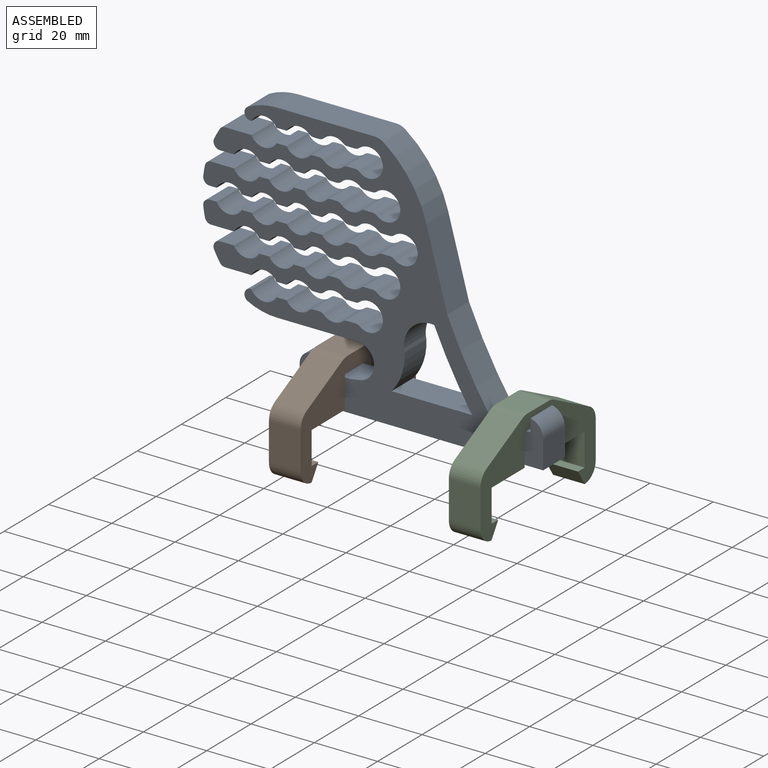
[diagram: assembled view]
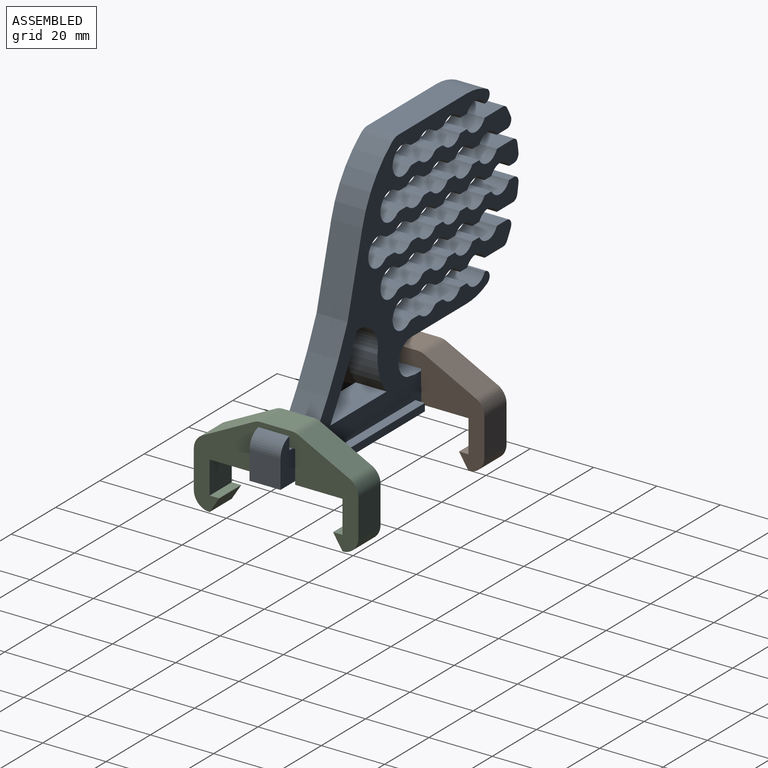
[diagram: assembled view, second angle]
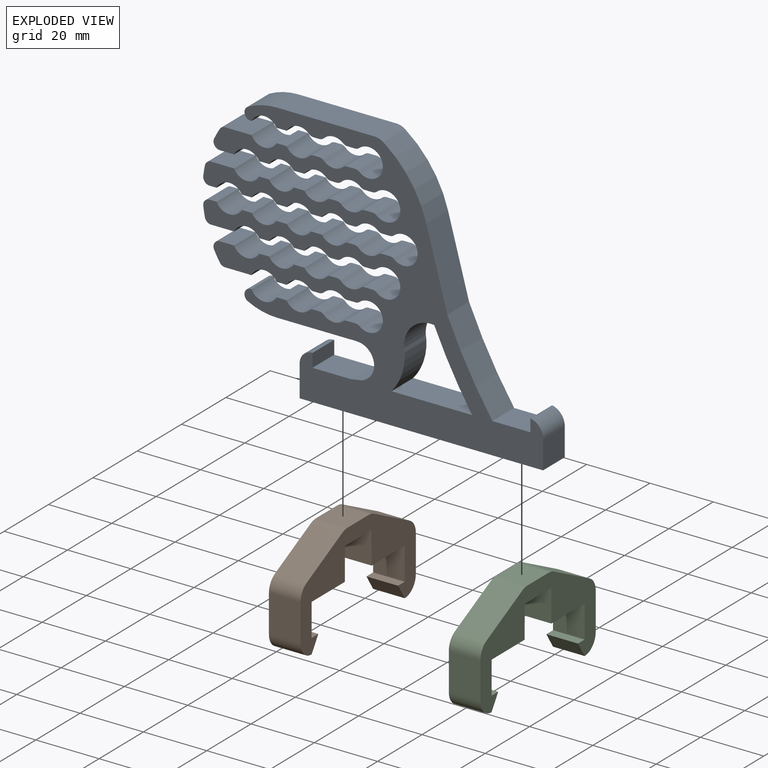
[diagram: exploded view]
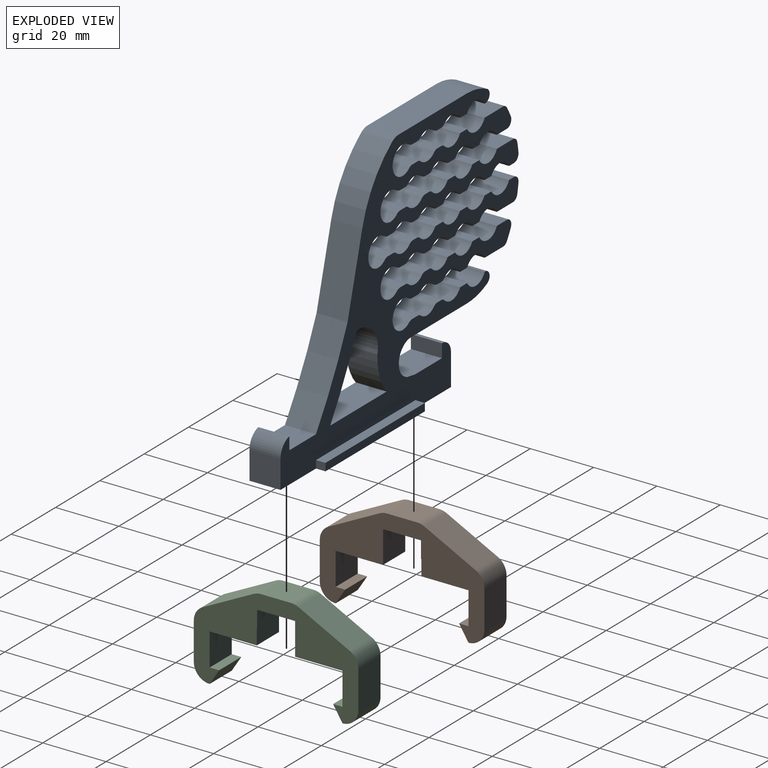
[diagram: exploded view, second angle]
ASSEMBLY  parts=3 mates=2
PART A: 177 faces, bbox 107.4x12.8x81.1 mm
  f0: plane 12x9.8mm, normal (0,0,1), area 117.6mm2, adj f79,f119,f120,f171
  f1: plane 25.46x9.8mm, normal (0,0,1), area 249.5mm2, adj f2,f118,f119,f120
  f2: cylinder r=164.66mm len=22.51mm, axis (0,1,0), area 250.1mm2, adj f1,f3,f119,f120
  f3: cylinder r=8.48mm len=10.42mm, axis (0,1,0), area 160.3mm2, adj f2,f118,f119,f120
  f4: cylinder r=4.5mm len=9.8mm, axis (0,1,0), area 201.8mm2, adj f119,f120,f131,f170
  f5: plane 9.8x2.46mm, normal (0,0,-1), area 24.1mm2, adj f119,f120,f131,f132
  f6: cylinder r=4.5mm len=9.8mm, axis (0,1,0), area 66.2mm2, adj f119,f120,f132,f133
  f7: plane 9.8x1.82mm, normal (0,0,-1), area 17.8mm2, adj f119,f120,f133,f134
  f8: cylinder r=4.5mm len=9.8mm, axis (0,1,0), area 79.1mm2, adj f9,f119,f120,f134
  f9: plane 9.8x3.39mm, normal (0,0,-1), area 33.2mm2, adj f8,f10,f119,f120
  f10: cylinder r=4.5mm len=9.8mm, axis (0,1,0), area 91.2mm2, adj f9,f11,f119,f120
  f11: plane 9.8x3.15mm, normal (0,0,-1), area 30.9mm2, adj f10,f12,f119,f120
  f12: cylinder r=4.5mm len=9.8mm, axis (0,1,0), area 95.7mm2, adj f11,f13,f119,f120
  f13: plane 9.8x7.24mm, normal (0,0,-1), area 71mm2, adj f12,f119,f120,f121
  f14: cylinder r=36mm len=9.8mm, axis (0,1,0), area 31.6mm2, adj f119,f120,f121,f122
  f15: plane 9.8x2.23mm, normal (0,0,1), area 21.9mm2, adj f16,f119,f120,f122
  f16: cylinder r=4.5mm len=9.8mm, axis (0,1,0), area 95.7mm2, adj f15,f17,f119,f120
  f17: plane 9.8x3.15mm, normal (0,0,1), area 30.9mm2, adj f16,f18,f119,f120
  f18: cylinder r=4.5mm len=9.8mm, axis (0,1,0), area 91.2mm2, adj f17,f19,f119,f120
  f19: plane 9.8x3.39mm, normal (0,0,1), area 33.2mm2, adj f18,f20,f119,f120
  f20: cylinder r=4.5mm len=9.8mm, axis (0,1,0), area 87.8mm2, adj f19,f21,f119,f120
  f21: plane 9.8x3.52mm, normal (0,0,1), area 34.5mm2, adj f20,f22,f119,f120
  f22: cylinder r=4.5mm len=9.8mm, axis (0,1,0), area 77.9mm2, adj f21,f119,f120,f135
  f23: plane 9.8x1.82mm, normal (0,0,1), area 17.8mm2, adj f119,f120,f135,f136
  f24: cylinder r=4.5mm len=9.8mm, axis (0,1,0), area 66.2mm2, adj f119,f120,f136,f137
  f25: plane 9.8x2.46mm, normal (0,0,1), area 24.1mm2, adj f119,f120,f137,f138
  f26: cylinder r=4.5mm len=9.8mm, axis (0,1,0), area 201.8mm2, adj f119,f120,f138,f139
  f27: plane 9.8x2.46mm, normal (0,0,-1), area 24.1mm2, adj f119,f120,f139,f140
  f28: cylinder r=4.5mm len=9.8mm, axis (0,1,0), area 66.2mm2, adj f119,f120,f140,f141
  f29: plane 9.8x1.82mm, normal (0,0,-1), area 17.8mm2, adj f119,f120,f141,f142
  f30: cylinder r=4.5mm len=9.8mm, axis (0,1,0), area 77.9mm2, adj f31,f119,f120,f142
  f31: plane 9.8x3.52mm, normal (0,0,-1), area 34.5mm2, adj f30,f32,f119,f120
  f32: cylinder r=4.5mm len=9.8mm, axis (0,1,0), area 87.8mm2, adj f31,f33,f119,f120
  f33: plane 9.8x3.39mm, normal (0,0,-1), area 33.2mm2, adj f32,f34,f119,f120
  f34: cylinder r=4.5mm len=9.8mm, axis (0,1,0), area 91.2mm2, adj f33,f35,f119,f120
  f35: plane 9.8x3.15mm, normal (0,0,-1), area 30.9mm2, adj f34,f36,f119,f120
  f36: cylinder r=4.5mm len=9.8mm, axis (0,1,0), area 95.7mm2, adj f35,f37,f119,f120
  f37: plane 9.8x2.23mm, normal (0,0,-1), area 21.9mm2, adj f36,f119,f120,f123
  f38: cylinder r=36mm len=9.8mm, axis (0,1,0), area 31.6mm2, adj f119,f120,f123,f124
  f39: plane 9.8x7.24mm, normal (0,0,1), area 71mm2, adj f40,f119,f120,f124
  f40: cylinder r=4.5mm len=9.8mm, axis (0,1,0), area 95.7mm2, adj f39,f41,f119,f120
  f41: plane 9.8x3.15mm, normal (0,0,1), area 30.9mm2, adj f40,f42,f119,f120
  f42: cylinder r=4.5mm len=9.8mm, axis (0,1,0), area 91.2mm2, adj f41,f43,f119,f120
  f43: plane 9.8x3.39mm, normal (0,0,1), area 33.2mm2, adj f42,f44,f119,f120
  f44: cylinder r=4.5mm len=9.8mm, axis (0,1,0), area 79.1mm2, adj f43,f119,f120,f143
  f45: plane 9.8x1.82mm, normal (0,0,1), area 17.8mm2, adj f119,f120,f143,f144
  f46: cylinder r=4.5mm len=9.8mm, axis (0,1,0), area 66.2mm2, adj f119,f120,f144,f145
  f47: plane 9.8x2.46mm, normal (0,0,1), area 24.1mm2, adj f119,f120,f145,f146
  f48: cylinder r=4.5mm len=9.8mm, axis (0,1,0), area 201.8mm2, adj f119,f120,f146,f147
  f49: plane 9.8x2.46mm, normal (0,0,-1), area 24.1mm2, adj f119,f120,f147,f148
  f50: cylinder r=4.5mm len=9.8mm, axis (0,1,0), area 66.2mm2, adj f119,f120,f148,f149
  f51: plane 9.8x1.82mm, normal (0,0,-1), area 17.8mm2, adj f119,f120,f149,f150
  f52: cylinder r=4.5mm len=9.8mm, axis (0,1,0), area 79.1mm2, adj f53,f119,f120,f150
  f53: plane 9.8x3.39mm, normal (0,0,-1), area 33.2mm2, adj f52,f54,f119,f120
  f54: cylinder r=4.5mm len=9.8mm, axis (0,1,0), area 91.2mm2, adj f53,f55,f119,f120
  f55: plane 9.8x3.15mm, normal (0,0,-1), area 30.9mm2, adj f54,f56,f119,f120
  f56: cylinder r=4.5mm len=9.8mm, axis (0,1,0), area 95.7mm2, adj f55,f57,f119,f120
  f57: plane 9.8x4.48mm, normal (0,0,-1), area 43.9mm2, adj f56,f119,f120,f125
  f58: cylinder r=36mm len=9.8mm, axis (0,1,0), area 35.6mm2, adj f119,f120,f125,f126
  f59: plane 9.8x8.31mm, normal (0,0,1), area 81.5mm2, adj f60,f119,f120,f126
  f60: cylinder r=4.5mm len=9.8mm, axis (0,1,0), area 95.7mm2, adj f59,f61,f119,f120
  f61: plane 9.8x3.15mm, normal (0,0,1), area 30.9mm2, adj f60,f62,f119,f120
  f62: cylinder r=4.5mm len=9.8mm, axis (0,1,0), area 81.3mm2, adj f61,f119,f120,f151
  f63: plane 9.8x1.82mm, normal (0,0,1), area 17.8mm2, adj f119,f120,f151,f152
  f64: cylinder r=4.5mm len=9.8mm, axis (0,1,0), area 66.2mm2, adj f119,f120,f152,f153
  f65: plane 9.8x2.46mm, normal (0,0,1), area 24.1mm2, adj f119,f120,f153,f154
  f66: cylinder r=4.5mm len=9.8mm, axis (0,1,0), area 201.8mm2, adj f119,f120,f154,f155
  f67: plane 9.8x2.46mm, normal (0,0,-1), area 24.1mm2, adj f119,f120,f155,f156
  f68: cylinder r=4.5mm len=9.8mm, axis (0,1,0), area 66.2mm2, adj f119,f120,f156,f157
  f69: plane 9.8x1.82mm, normal (0,0,-1), area 17.8mm2, adj f119,f120,f157,f158
  f70: cylinder r=4.5mm len=9.8mm, axis (0,1,0), area 81.3mm2, adj f71,f119,f120,f158
  f71: plane 9.8x3.15mm, normal (0,0,-1), area 30.9mm2, adj f70,f72,f119,f120
  f72: cylinder r=4.5mm len=9.8mm, axis (0,1,0), area 95.7mm2, adj f71,f73,f119,f120
  f73: plane 9.8x0.21mm, normal (0,0,-1), area 2mm2, adj f72,f119,f120,f127
  f74: cylinder r=20mm len=9.8mm, axis (0,1,0), area 93.3mm2, adj f75,f119,f120,f127
  f75: plane 30.82x9.8mm, normal (0,0,1), area 302mm2, adj f74,f76,f119,f120
  f76: cylinder r=5mm len=9.8mm, axis (0,1,0), area 31mm2, adj f75,f77,f119,f120
  f77: cylinder r=36mm len=19.53mm, axis (0,1,0), area 236.7mm2, adj f76,f78,f119,f120
  f78: plane 24.25x9.8mm, normal (-0.96,0,0.26), area 246.4mm2, adj f77,f79,f119,f120
  f79: cylinder r=159.26mm len=26.57mm, axis (0,1,0), area 295.9mm2, adj f0,f78,f119,f120
  f80: plane 9.8x8.9mm, normal (-1,0,0), area 87.2mm2, adj f81,f119,f120,f172
  f81: plane 76.91x12.8mm, normal (0,0,-1), area 888.3mm2, adj f80,f82,f119,f120,f173,f174,f176
  f82: plane 10.05x9.8mm, normal (1,0,0), area 98.5mm2, adj f81,f83,f119,f120
  f83: cylinder r=4mm len=9.8mm, axis (0,1,0), area 61.6mm2, adj f82,f84,f119,f120
  f84: plane 9.8x0.07mm, normal (0,0,1), area 0.7mm2, adj f83,f85,f119,f120
  f85: plane 9.8x4.25mm, normal (-1,0,0), area 41.7mm2, adj f84,f86,f119,f120
  f86: plane 12x9.8mm, normal (0,0,1), area 117.6mm2, adj f85,f87,f119,f120
  f87: plane 9.8x3.46mm, normal (0.16,0,0.99), area 34.3mm2, adj f86,f88,f119,f120
  f88: cylinder r=11.24mm len=9.8mm, axis (0,1,0), area 6.7mm2, adj f87,f89,f119,f120
  f89: cylinder r=5.48mm len=10.43mm, axis (0,1,0), area 136.9mm2, adj f88,f90,f119,f120
  f90: cylinder r=17.67mm len=9.8mm, axis (0,1,0), area 33.9mm2, adj f89,f91,f119,f120
  f91: plane 22.88x9.8mm, normal (0,0,-1), area 224.2mm2, adj f90,f92,f119,f120
  f92: cylinder r=20mm len=9.8mm, axis (0,1,0), area 93.3mm2, adj f91,f119,f120,f128
  f93: plane 9.8x0.21mm, normal (0,0,1), area 2mm2, adj f94,f119,f120,f128
  f94: cylinder r=4.5mm len=9.8mm, axis (0,1,0), area 95.7mm2, adj f93,f95,f119,f120
  f95: plane 9.8x3.15mm, normal (0,0,1), area 30.9mm2, adj f94,f96,f119,f120
  f96: cylinder r=4.5mm len=9.8mm, axis (0,1,0), area 81.3mm2, adj f95,f119,f120,f159
  f97: plane 9.8x1.82mm, normal (0,0,1), area 17.8mm2, adj f119,f120,f159,f160
  f98: cylinder r=4.5mm len=9.8mm, axis (0,1,0), area 65.2mm2, adj f119,f120,f160,f161
  f99: plane 9.8x2.69mm, normal (0,0,1), area 26.4mm2, adj f119,f120,f161,f162
  f100: cylinder r=4.5mm len=9.8mm, axis (0,1,0), area 199.7mm2, adj f119,f120,f162,f163
  f101: plane 9.8x2.69mm, normal (0,0,-1), area 26.4mm2, adj f119,f120,f163,f164
  f102: cylinder r=4.5mm len=9.8mm, axis (0,1,0), area 65.2mm2, adj f119,f120,f164,f165
  f103: plane 9.8x1.82mm, normal (0,0,-1), area 17.8mm2, adj f119,f120,f165,f166
  f104: cylinder r=4.5mm len=9.8mm, axis (0,1,0), area 81.3mm2, adj f105,f119,f120,f166
  f105: plane 9.8x3.15mm, normal (0,0,-1), area 30.9mm2, adj f104,f106,f119,f120
  f106: cylinder r=4.5mm len=9.8mm, axis (0,1,0), area 95.7mm2, adj f105,f107,f119,f120
  f107: plane 9.8x8.31mm, normal (0,0,-1), area 81.5mm2, adj f106,f119,f120,f129
  f108: cylinder r=36mm len=9.8mm, axis (0,1,0), area 35.6mm2, adj f119,f120,f129,f130
  f109: plane 9.8x4.48mm, normal (0,0,1), area 43.9mm2, adj f110,f119,f120,f130
  f110: cylinder r=4.5mm len=9.8mm, axis (0,1,0), area 95.7mm2, adj f109,f111,f119,f120
  f111: plane 9.8x3.15mm, normal (0,0,1), area 30.9mm2, adj f110,f112,f119,f120
  f112: cylinder r=4.5mm len=9.8mm, axis (0,1,0), area 91.2mm2, adj f111,f113,f119,f120
  f113: plane 9.8x3.39mm, normal (0,0,1), area 33.2mm2, adj f112,f114,f119,f120
  f114: cylinder r=4.5mm len=9.8mm, axis (0,1,0), area 79.1mm2, adj f113,f119,f120,f167
  f115: plane 9.8x1.82mm, normal (0,0,1), area 17.8mm2, adj f119,f120,f167,f168
  f116: cylinder r=4.5mm len=9.8mm, axis (0,1,0), area 66.2mm2, adj f119,f120,f168,f169
  f117: plane 9.8x2.46mm, normal (0,0,1), area 24.1mm2, adj f119,f120,f169,f170
  f118: cylinder r=17.14mm len=12.16mm, axis (0,1,0), area 129.2mm2, adj f1,f3,f119,f120
  f119: plane 107.38x81.11mm, normal (0,-1,0), area 2854.8mm2, adj f0,f1,f2,f3,f4,f5,f6,f7
  f120: plane 107.38x81.11mm, normal (0,1,0), area 2962.7mm2, adj f0,f1,f2,f3,f4,f5,f6,f7
  f121: cylinder r=2mm len=9.8mm, axis (0,1,0), area 26.7mm2, adj f13,f14,f119,f120
  f122: cylinder r=2mm len=9.8mm, axis (0,1,0), area 33.1mm2, adj f14,f15,f119,f120
  f123: cylinder r=2mm len=9.8mm, axis (0,1,0), area 33.1mm2, adj f37,f38,f119,f120
  f124: cylinder r=2mm len=9.8mm, axis (0,1,0), area 26.7mm2, adj f38,f39,f119,f120
  f125: cylinder r=2mm len=9.8mm, axis (0,1,0), area 39.7mm2, adj f57,f58,f119,f120
  f126: cylinder r=2mm len=9.8mm, axis (0,1,0), area 19.9mm2, adj f58,f59,f119,f120
  f127: cylinder r=2mm len=9.8mm, axis (0,1,0), area 52.2mm2, adj f73,f74,f119,f120
  f128: cylinder r=2mm len=9.8mm, axis (0,1,0), area 52.2mm2, adj f92,f93,f119,f120
  f129: cylinder r=2mm len=9.8mm, axis (0,1,0), area 19.9mm2, adj f107,f108,f119,f120
  f130: cylinder r=2mm len=9.8mm, axis (0,1,0), area 39.7mm2, adj f108,f109,f119,f120
  f131: cylinder r=2mm len=9.8mm, axis (0,1,0), area 14.1mm2, adj f4,f5,f119,f120
  f132: cylinder r=2mm len=9.8mm, axis (0,1,0), area 14.1mm2, adj f5,f6,f119,f120
  f133: cylinder r=2mm len=9.8mm, axis (0,1,0), area 15.4mm2, adj f6,f7,f119,f120
  f134: cylinder r=2mm len=9.8mm, axis (0,1,0), area 15.4mm2, adj f7,f8,f119,f120
  f135: cylinder r=2mm len=9.8mm, axis (0,1,0), area 15.4mm2, adj f22,f23,f119,f120
  f136: cylinder r=2mm len=9.8mm, axis (0,1,0), area 15.4mm2, adj f23,f24,f119,f120
  f137: cylinder r=2mm len=9.8mm, axis (0,1,0), area 14.1mm2, adj f24,f25,f119,f120
  f138: cylinder r=2mm len=9.8mm, axis (0,1,0), area 14.1mm2, adj f25,f26,f119,f120
  f139: cylinder r=2mm len=9.8mm, axis (0,1,0), area 14.1mm2, adj f26,f27,f119,f120
  f140: cylinder r=2mm len=9.8mm, axis (0,1,0), area 14.1mm2, adj f27,f28,f119,f120
  f141: cylinder r=2mm len=9.8mm, axis (0,1,0), area 15.4mm2, adj f28,f29,f119,f120
  f142: cylinder r=2mm len=9.8mm, axis (0,1,0), area 15.4mm2, adj f29,f30,f119,f120
  f143: cylinder r=2mm len=9.8mm, axis (0,1,0), area 15.4mm2, adj f44,f45,f119,f120
  f144: cylinder r=2mm len=9.8mm, axis (0,1,0), area 15.4mm2, adj f45,f46,f119,f120
  f145: cylinder r=2mm len=9.8mm, axis (0,1,0), area 14.1mm2, adj f46,f47,f119,f120
  f146: cylinder r=2mm len=9.8mm, axis (0,1,0), area 14.1mm2, adj f47,f48,f119,f120
  f147: cylinder r=2mm len=9.8mm, axis (0,1,0), area 14.1mm2, adj f48,f49,f119,f120
  f148: cylinder r=2mm len=9.8mm, axis (0,1,0), area 14.1mm2, adj f49,f50,f119,f120
  f149: cylinder r=2mm len=9.8mm, axis (0,1,0), area 15.4mm2, adj f50,f51,f119,f120
  f150: cylinder r=2mm len=9.8mm, axis (0,1,0), area 15.4mm2, adj f51,f52,f119,f120
  f151: cylinder r=2mm len=9.8mm, axis (0,1,0), area 15.4mm2, adj f62,f63,f119,f120
  f152: cylinder r=2mm len=9.8mm, axis (0,1,0), area 15.4mm2, adj f63,f64,f119,f120
  f153: cylinder r=2mm len=9.8mm, axis (0,1,0), area 14.1mm2, adj f64,f65,f119,f120
  f154: cylinder r=2mm len=9.8mm, axis (0,1,0), area 14.1mm2, adj f65,f66,f119,f120
  f155: cylinder r=2mm len=9.8mm, axis (0,1,0), area 14.1mm2, adj f66,f67,f119,f120
  f156: cylinder r=2mm len=9.8mm, axis (0,1,0), area 14.1mm2, adj f67,f68,f119,f120
  f157: cylinder r=2mm len=9.8mm, axis (0,1,0), area 15.4mm2, adj f68,f69,f119,f120
  f158: cylinder r=2mm len=9.8mm, axis (0,1,0), area 15.4mm2, adj f69,f70,f119,f120
  f159: cylinder r=2mm len=9.8mm, axis (0,1,0), area 15.4mm2, adj f96,f97,f119,f120
  f160: cylinder r=2mm len=9.8mm, axis (0,1,0), area 15.4mm2, adj f97,f98,f119,f120
  f161: cylinder r=2mm len=9.8mm, axis (0,1,0), area 13.6mm2, adj f98,f99,f119,f120
  f162: cylinder r=2mm len=9.8mm, axis (0,1,0), area 13.6mm2, adj f99,f100,f119,f120
  f163: cylinder r=2mm len=9.8mm, axis (0,1,0), area 13.6mm2, adj f100,f101,f119,f120
  f164: cylinder r=2mm len=9.8mm, axis (0,1,0), area 13.6mm2, adj f101,f102,f119,f120
  f165: cylinder r=2mm len=9.8mm, axis (0,1,0), area 15.4mm2, adj f102,f103,f119,f120
  f166: cylinder r=2mm len=9.8mm, axis (0,1,0), area 15.4mm2, adj f103,f104,f119,f120
  f167: cylinder r=2mm len=9.8mm, axis (0,1,0), area 15.4mm2, adj f114,f115,f119,f120
  f168: cylinder r=2mm len=9.8mm, axis (0,1,0), area 15.4mm2, adj f115,f116,f119,f120
  f169: cylinder r=2mm len=9.8mm, axis (0,1,0), area 14.1mm2, adj f116,f117,f119,f120
  f170: cylinder r=2mm len=9.8mm, axis (0,1,0), area 14.1mm2, adj f4,f117,f119,f120
  f171: plane 9.8x4mm, normal (1,0,0), area 39.2mm2, adj f0,f119,f120,f172
  f172: cylinder r=5mm len=9.8mm, axis (0,1,0), area 67.1mm2, adj f80,f119,f120,f171
  f173: plane 3x2.41mm, normal (-1,0,0), area 7.2mm2, adj f81,f119,f175,f176
  f174: plane 3x2.41mm, normal (1,0,0), area 7.2mm2, adj f81,f119,f175,f176
  f175: plane 44.84x3mm, normal (0,0,1), area 134.5mm2, adj f119,f173,f174,f176
  f176: plane 44.84x2.41mm, normal (0,-1,0), area 107.8mm2, adj f81,f173,f174,f175
PART B: 26 faces, bbox 52x10x30 mm
  f0: plane 11.82x10mm, normal (-1,0,0), area 118.2mm2, adj f18,f19,f20,f23
  f1: plane 10x4.7mm, normal (0.84,0,-0.54), area 55.8mm2, adj f2,f18,f19,f23
  f2: plane 10x3mm, normal (0,0,1), area 30mm2, adj f1,f3,f18,f19
  f3: plane 10.3x10mm, normal (1,0,0), area 103mm2, adj f2,f4,f18,f19
  f4: plane 14.9x10mm, normal (0,0,-1), area 149mm2, adj f3,f5,f18,f19
  f5: plane 10x4.9mm, normal (1,0,0), area 49mm2, adj f4,f6,f18,f19
  f6: plane 10x0.1mm, normal (0,0,-1), area 1mm2, adj f5,f7,f18,f19
  f7: plane 10x5.3mm, normal (1,0,0), area 53mm2, adj f6,f8,f18,f19
  f8: plane 12x10mm, normal (0,0,-1), area 120mm2, adj f7,f9,f18,f19
  f9: plane 10.2x10mm, normal (-1,0,0), area 102mm2, adj f8,f10,f18,f19
  f10: plane 15x10mm, normal (0,0,-1), area 150mm2, adj f9,f11,f18,f19
  f11: plane 10.3x10mm, normal (-1,0,0), area 103mm2, adj f10,f12,f18,f19
  f12: plane 10x3mm, normal (0,0,1), area 30mm2, adj f11,f13,f18,f19
  f13: plane 10x4.7mm, normal (-0.84,0,-0.54), area 55.8mm2, adj f12,f18,f19,f24
  f14: plane 11.82x10mm, normal (1,0,0), area 118.2mm2, adj f18,f19,f21,f24
  f15: plane 16.19x10mm, normal (0.45,0,0.89), area 181.4mm2, adj f18,f19,f21,f22
  f16: plane 10x9.62mm, normal (0,0,1), area 96.2mm2, adj f18,f19,f22,f25
  f17: plane 16.19x10mm, normal (-0.45,0,0.89), area 181.4mm2, adj f18,f19,f20,f25
  f18: plane 52x30mm, normal (0,-1,0), area 605.1mm2, adj f0,f1,f2,f3,f4,f5,f6,f7
  f19: plane 52x30mm, normal (0,1,0), area 605.1mm2, adj f0,f1,f2,f3,f4,f5,f6,f7
  f20: cylinder r=5mm len=10mm, axis (0,1,0), area 55.2mm2, adj f0,f17,f18,f19
  f21: cylinder r=5mm len=10mm, axis (0,1,0), area 55.2mm2, adj f14,f15,f18,f19
  f22: cylinder r=5mm len=10mm, axis (0,1,0), area 23.4mm2, adj f15,f16,f18,f19
  f23: cylinder r=5mm len=10mm, axis (0,-1,0), area 78.5mm2, adj f0,f1,f18,f19
  f24: cylinder r=5mm len=10mm, axis (0,1,0), area 78.5mm2, adj f13,f14,f18,f19
  f25: cylinder r=5mm len=10mm, axis (0,1,0), area 23.4mm2, adj f16,f17,f18,f19
PART C: same geometry as B
PLACE A rot(axis=(0,0,1),180deg) t=(-176.9,-46.37,8.1)mm
PLACE B rot(axis=(0,0,-1),90deg) t=(-167.12,-15.47,-41.86)mm
PLACE C rot(axis=(0,0,1),90deg) t=(-120.28,-67.47,-43.17)mm
MATE slider A.f86 <-> B.f8  axis (0,0,1) through (-172.12,-41.47,-33.21)mm
MATE slider A.f0 <-> C.f8  axis (0,0,1) through (-115.28,-41.47,-33.21)mm
